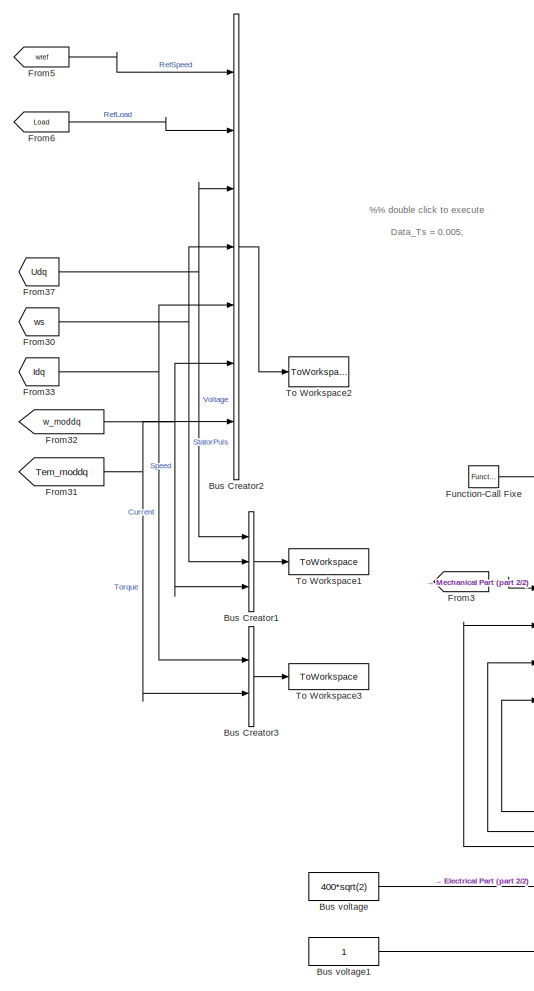
[diagram: root canvas - part 1/2, left side, full height]
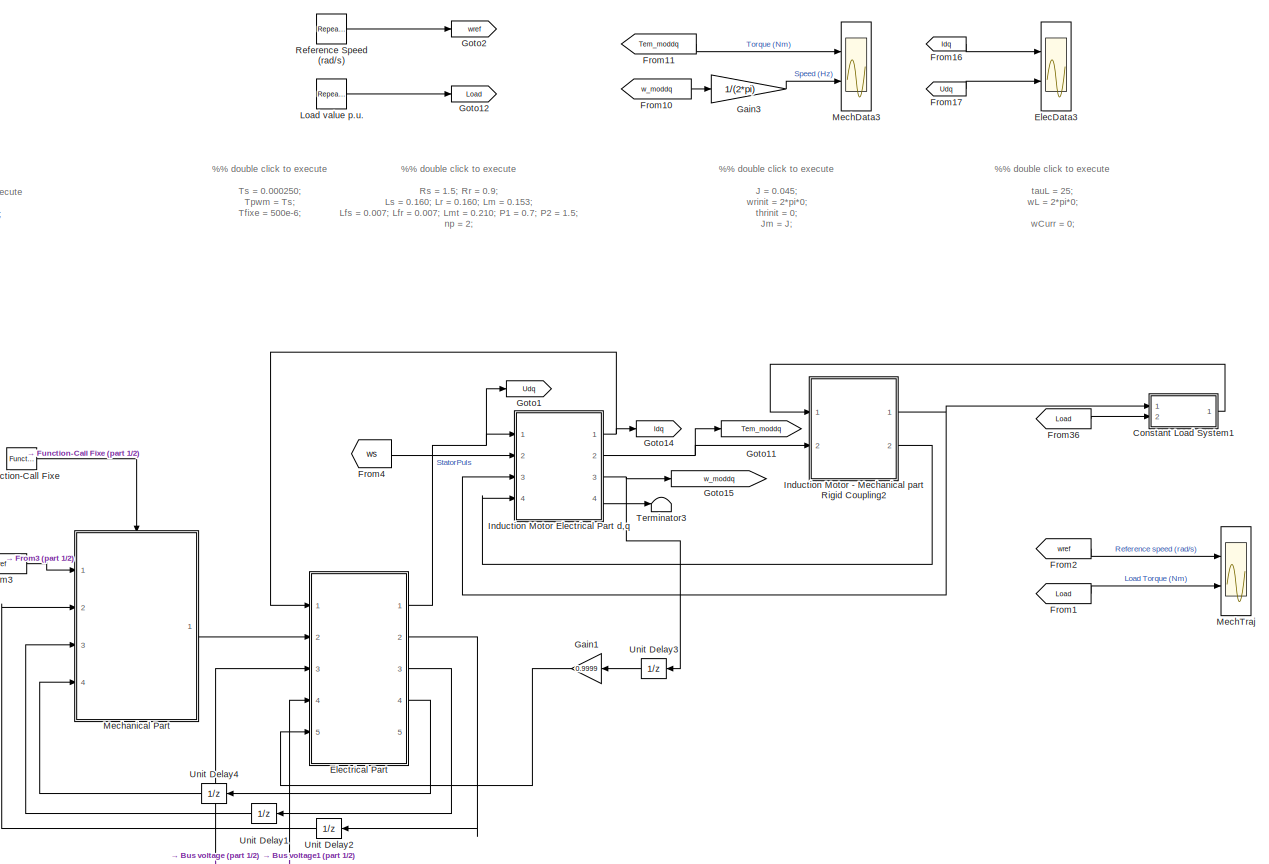
[diagram: root canvas - part 2/2, most of the canvas]
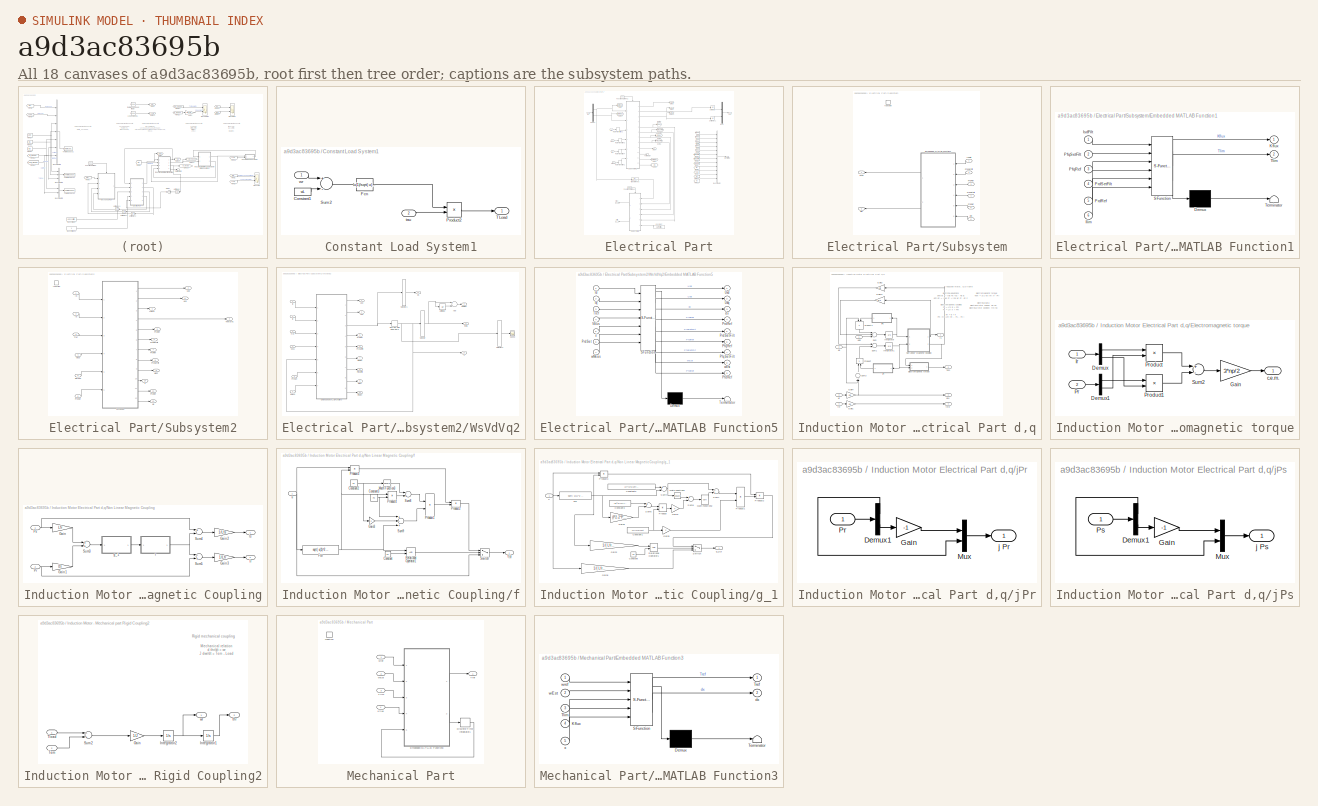
[diagram: thumbnail index - all 18 canvases of the model, root first then tree order]
MODEL slx_a9d3ac83695b
KIND model
CONFIG AbsTol = auto
CONFIG EnableMultiTasking = on
CONFIG FixedStep = auto
CONFIG MaxStep = 1e-4
CONFIG MinStep = auto
CONFIG RelTol = 1e-4
CONFIG SampleTimeConstraint = Unconstrained
CONFIG Solver = ode45
CONFIG SolverName = ode45
CONFIG StartTime = 0.0
CONFIG StopTime = 10
BLOCK [BusCreator] Bus Creator1
  DisplayOption = bar
  InheritFromInputs = on
  Inputs = 3
  Ports = [3, 1]
BLOCK [BusCreator] Bus Creator2
  DisplayOption = bar
  InheritFromInputs = on
  Inputs = 7
  Ports = [7, 1]
BLOCK [BusCreator] Bus Creator3
  DisplayOption = bar
  InheritFromInputs = on
  Inputs = 2
  Ports = [2, 1]
BLOCK [Constant] Bus voltage
  Value = 400*sqrt(2)
BLOCK [Constant] Bus voltage1
BLOCK [SubSystem] Constant Load System1
  Ports = [2, 1]
  RequestExecContextInheritance = off
BLOCK [Constant] Constant Load System1/Constant1
  Value = wL
BLOCK [Fcn] Constant Load System1/Fcn
  Expr = u(1)/sqrt( u(1)^2 + (2*pi*0.1)^2)
BLOCK [Product] Constant Load System1/Product2
  InputSameDT = off
  OutDataTypeStr = Inherit: Inherit via internal rule
  Ports = [2, 1]
  SaturateOnIntegerOverflow = off
BLOCK [Sum] Constant Load System1/Sum2
  Inputs = +-
  Ports = [2, 1]
BLOCK [Outport] Constant Load System1/TLoad
  IconDisplay = Port number
  VectorParamsAs1DForOutWhenUnconnected = off
BLOCK [Inport] Constant Load System1/tau
  IconDisplay = Port number
  Port = 2
BLOCK [Inport] Constant Load System1/wr
  IconDisplay = Port number
BLOCK [Scope] ElecData3
  Commented = on
  Floating = off
  NumInputPorts = 2
  Ports = [2]
  ScopeSpecificationString = C++SS(StrPVP('Location','[905, 97, 1229, 770]'),StrPVP('Open','off'),StrPVP('TickLabels','on'),StrPVP('ZoomMode','xonly'),MxPVP('AxesTitles',54,'struct(''axes1'',''%<SignalLabel>'',''axes2'',''%<SignalLabel>'')'),MxPVP('ScopeGraphics',57,'struct(''FigureColor'',''[0.5 0.5 0.5]'',''AxesColor'',''[0 0 0]'',''AxesTickColor'',''[1 1 1]'',''LineColors'',''[1 1 0;1 0 1;0 1 1;1 0 0;0 1 0;0 0 1]'',''LineS...<+439ch>
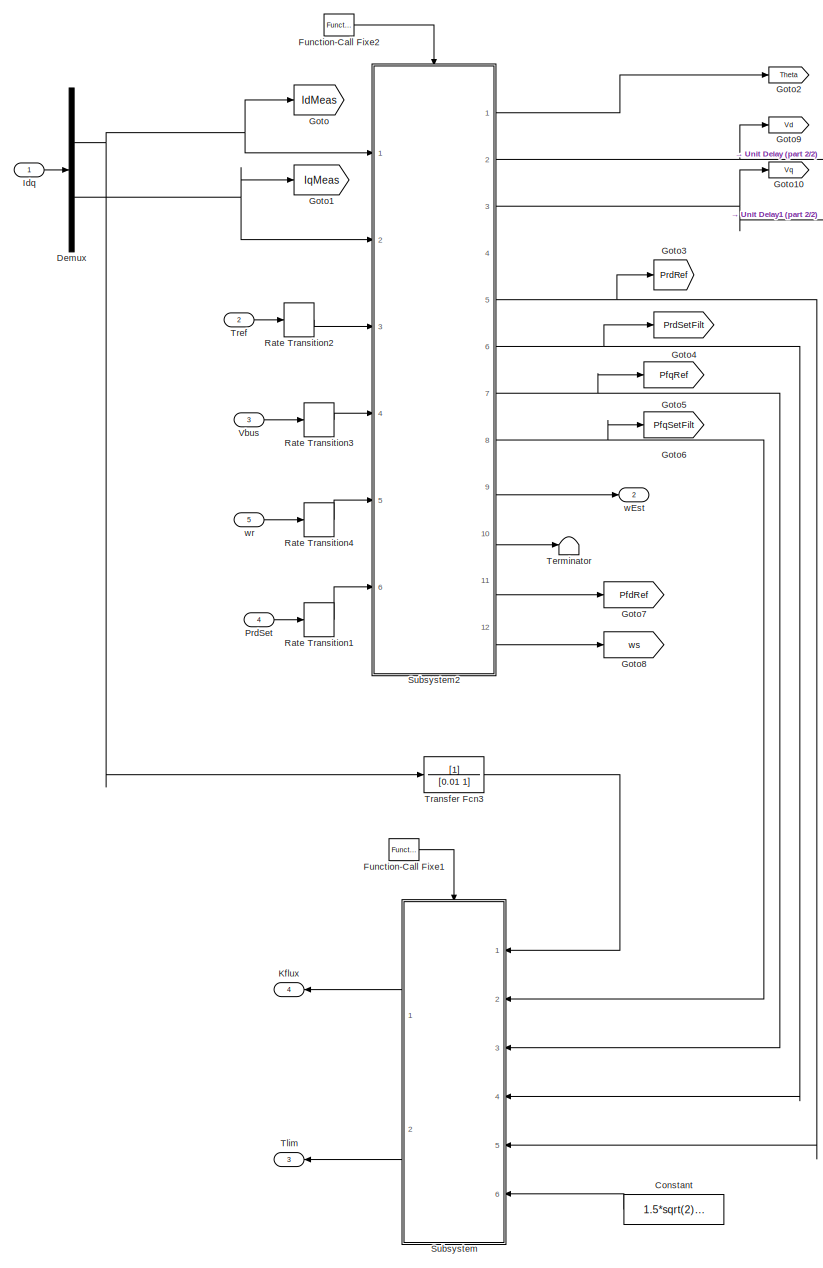
[diagram: Electrical Part - part 1/2, left side, full height]
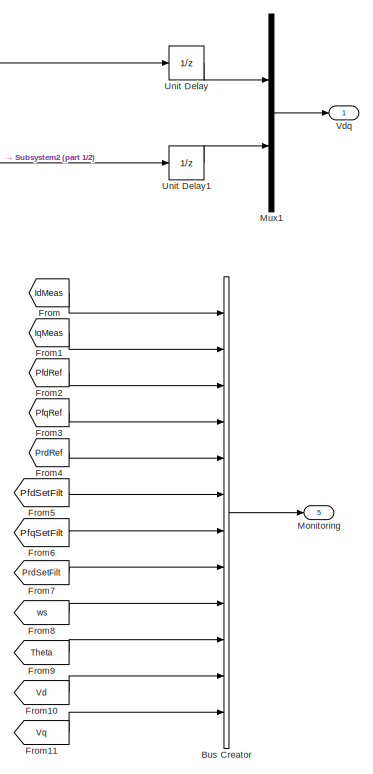
[diagram: Electrical Part - part 2/2, middle right region]
BLOCK [SubSystem] Electrical Part
  Ports = [5, 5]
  RequestExecContextInheritance = off
BLOCK [BusCreator] Electrical Part/Bus Creator
  DisplayOption = bar
  InheritFromInputs = on
  Inputs = 12
  Ports = [12, 1]
BLOCK [Constant] Electrical Part/Constant
  Value = 1.5*sqrt(2)*Inom
BLOCK [Demux] Electrical Part/Demux
  DisplayOption = bar
  Outputs = 2
  Ports = [1, 2]
BLOCK [From] Electrical Part/From
  GotoTag = IdMeas
BLOCK [From] Electrical Part/From1
  GotoTag = IqMeas
BLOCK [From] Electrical Part/From10
  GotoTag = Vd
BLOCK [From] Electrical Part/From11
  GotoTag = Vq
BLOCK [From] Electrical Part/From2
  GotoTag = PfdRef
BLOCK [From] Electrical Part/From3
  GotoTag = PfqRef
BLOCK [From] Electrical Part/From4
  GotoTag = PrdRef
BLOCK [From] Electrical Part/From5
  GotoTag = PfdSetFilt
BLOCK [From] Electrical Part/From6
  GotoTag = PfqSetFilt
BLOCK [From] Electrical Part/From7
  GotoTag = PrdSetFilt
BLOCK [From] Electrical Part/From8
  GotoTag = ws
  TagVisibility = global
BLOCK [From] Electrical Part/From9
  GotoTag = Theta
BLOCK [Reference] Electrical Part/Function-Call Fixe1  REF=simulink/Ports &
Subsystems/Function-Call
Generator
  Ports = [0, 1]
  SourceBlock = simulink/Ports &\nSubsystems/Function-Call\nGenerator
  SourceProductBaseCode = SL
  SourceProductName = Simulink
  SourceType = Function-Call Generator
BLOCK [Reference] Electrical Part/Function-Call Fixe2  REF=simulink/Ports &
Subsystems/Function-Call
Generator
  Ports = [0, 1]
  SourceBlock = simulink/Ports &\nSubsystems/Function-Call\nGenerator
  SourceProductBaseCode = SL
  SourceProductName = Simulink
  SourceType = Function-Call Generator
BLOCK [Goto] Electrical Part/Goto
  GotoTag = IdMeas
BLOCK [Goto] Electrical Part/Goto1
  GotoTag = IqMeas
BLOCK [Goto] Electrical Part/Goto10
  GotoTag = Vq
BLOCK [Goto] Electrical Part/Goto2
  GotoTag = Theta
BLOCK [Goto] Electrical Part/Goto3
  GotoTag = PrdRef
BLOCK [Goto] Electrical Part/Goto4
  GotoTag = PrdSetFilt
BLOCK [Goto] Electrical Part/Goto5
  GotoTag = PfqRef
BLOCK [Goto] Electrical Part/Goto6
  GotoTag = PfqSetFilt
BLOCK [Goto] Electrical Part/Goto7
  GotoTag = PfdRef
BLOCK [Goto] Electrical Part/Goto8
  GotoTag = ws
  TagVisibility = global
BLOCK [Goto] Electrical Part/Goto9
  GotoTag = Vd
BLOCK [Inport] Electrical Part/Idq
  IconDisplay = Port number
BLOCK [Outport] Electrical Part/Kflux
  IconDisplay = Port number
  Port = 4
  VectorParamsAs1DForOutWhenUnconnected = off
BLOCK [Outport] Electrical Part/Monitoring
  IconDisplay = Port number
  Port = 5
  VectorParamsAs1DForOutWhenUnconnected = off
BLOCK [Mux] Electrical Part/Mux1
  DisplayOption = bar
  Inputs = 2
  Ports = [2, 1]
BLOCK [Inport] Electrical Part/PrdSet
  IconDisplay = Port number
  Port = 4
BLOCK [RateTransition] Electrical Part/Rate Transition1
BLOCK [RateTransition] Electrical Part/Rate Transition2
BLOCK [RateTransition] Electrical Part/Rate Transition3
BLOCK [RateTransition] Electrical Part/Rate Transition4
BLOCK [SubSystem] Electrical Part/Subsystem
  Ports = [6, 2, 0, 1]
  RequestExecContextInheritance = off
BLOCK [SubSystem] Electrical Part/Subsystem/Embedded MATLAB Function1
  ErrorFcn = Stateflow.Translate.translate
  PermitHierarchicalResolution = ExplicitOnly
  Ports = [6, 2]
  RequestExecContextInheritance = off
  SFBlockType = MATLAB Function
  TreatAsAtomicUnit = on
BLOCK [Demux] Electrical Part/Subsystem/Embedded MATLAB Function1/ Demux 
  Outputs = 1
  Ports = [1, 1]
BLOCK [S-Function] Electrical Part/Subsystem/Embedded MATLAB Function1/ SFunction 
  EnableBusSupport = on
  FunctionName = sf_sfun
  Parameters = Inom,Jm,Lm,Lr,Ls,Prdnom,Rr,Rs,np
  PortCounts = [6 3]
  Ports = [6, 3]
  SFcnIsStateOwnerBlock = off
  SFunctionDeploymentMode = off
  Tag = Stateflow S-Function 5
BLOCK [Terminator] Electrical Part/Subsystem/Embedded MATLAB Function1/ Terminator 
BLOCK [Inport] Electrical Part/Subsystem/Embedded MATLAB Function1/Ilim
  IconDisplay = Port number
  Port = 6
BLOCK [Inport] Electrical Part/Subsystem/Embedded MATLAB Function1/IsdFilt
  IconDisplay = Port number
BLOCK [Outport] Electrical Part/Subsystem/Embedded MATLAB Function1/Kflux
  IconDisplay = Port number
  VectorParamsAs1DForOutWhenUnconnected = off
BLOCK [Inport] Electrical Part/Subsystem/Embedded MATLAB Function1/PfqRef
  IconDisplay = Port number
  Port = 3
BLOCK [Inport] Electrical Part/Subsystem/Embedded MATLAB Function1/PfqSetFilt
  IconDisplay = Port number
  Port = 2
BLOCK [Inport] Electrical Part/Subsystem/Embedded MATLAB Function1/PrdRef
  IconDisplay = Port number
  Port = 5
BLOCK [Inport] Electrical Part/Subsystem/Embedded MATLAB Function1/PrdSetFilt
  IconDisplay = Port number
  Port = 4
BLOCK [Outport] Electrical Part/Subsystem/Embedded MATLAB Function1/Tlim
  IconDisplay = Port number
  Port = 2
  VectorParamsAs1DForOutWhenUnconnected = off
BLOCK [Inport] Electrical Part/Subsystem/Ilim
  IconDisplay = Port number
  Port = 6
BLOCK [Inport] Electrical Part/Subsystem/IsdFilt
  IconDisplay = Port number
BLOCK [Outport] Electrical Part/Subsystem/Kflux
  IconDisplay = Port number
  VectorParamsAs1DForOutWhenUnconnected = off
BLOCK [Inport] Electrical Part/Subsystem/PfqRef
  IconDisplay = Port number
  Port = 3
BLOCK [Inport] Electrical Part/Subsystem/PfqSetFilt
  IconDisplay = Port number
  Port = 2
BLOCK [Inport] Electrical Part/Subsystem/PrdRef
  IconDisplay = Port number
  Port = 5
BLOCK [Inport] Electrical Part/Subsystem/PrdSetFilt
  IconDisplay = Port number
  Port = 4
BLOCK [Outport] Electrical Part/Subsystem/Tlim
  IconDisplay = Port number
  Port = 2
  VectorParamsAs1DForOutWhenUnconnected = off
BLOCK [TriggerPort] Electrical Part/Subsystem/function
  Ports = []
  StatesWhenEnabling = held
  TriggerType = function-call
  VariantControl = (inherit)
BLOCK [SubSystem] Electrical Part/Subsystem2
  Ports = [6, 12, 0, 1]
  RequestExecContextInheritance = off
BLOCK [Inport] Electrical Part/Subsystem2/Id
  IconDisplay = Port number
BLOCK [Inport] Electrical Part/Subsystem2/Iq
  IconDisplay = Port number
  Port = 2
BLOCK [Outport] Electrical Part/Subsystem2/PfdRef
  IconDisplay = Port number
  Port = 11
  VectorParamsAs1DForOutWhenUnconnected = off
BLOCK [Outport] Electrical Part/Subsystem2/PfqRef
  IconDisplay = Port number
  Port = 7
  VectorParamsAs1DForOutWhenUnconnected = off
BLOCK [Outport] Electrical Part/Subsystem2/PfqSetFilt
  IconDisplay = Port number
  Port = 8
  VectorParamsAs1DForOutWhenUnconnected = off
BLOCK [Outport] Electrical Part/Subsystem2/PrdRef
  IconDisplay = Port number
  Port = 5
  VectorParamsAs1DForOutWhenUnconnected = off
BLOCK [Inport] Electrical Part/Subsystem2/PrdSet
  IconDisplay = Port number
  Port = 6
BLOCK [Outport] Electrical Part/Subsystem2/PrdSetFilt
  IconDisplay = Port number
  Port = 6
  VectorParamsAs1DForOutWhenUnconnected = off
BLOCK [Outport] Electrical Part/Subsystem2/ThetaInc
  IconDisplay = Port number
  Port = 4
  VectorParamsAs1DForOutWhenUnconnected = off
BLOCK [Inport] Electrical Part/Subsystem2/Tref
  IconDisplay = Port number
  Port = 3
BLOCK [Outport] Electrical Part/Subsystem2/Usd
  IconDisplay = Port number
  Port = 2
  VectorParamsAs1DForOutWhenUnconnected = off
BLOCK [Outport] Electrical Part/Subsystem2/Usq
  IconDisplay = Port number
  Port = 3
  VectorParamsAs1DForOutWhenUnconnected = off
BLOCK [Inport] Electrical Part/Subsystem2/Vbus
  IconDisplay = Port number
  Port = 4
BLOCK [SubSystem] Electrical Part/Subsystem2/WsVdVq2
  Ports = [6, 12]
  RequestExecContextInheritance = off
BLOCK [Sum] Electrical Part/Subsystem2/WsVdVq2/Add
  InputSameDT = off
  Inputs = +-
  OutDataTypeStr = Inherit: Inherit via internal rule
  Ports = [2, 1]
  SaturateOnIntegerOverflow = off
BLOCK [DiscreteIntegrator] Electrical Part/Subsystem2/WsVdVq2/Discrete-Time Integrator8
  ICPrevOutput = DiscIntNeverNeededParam
  ICPrevScaledInput = DiscIntNeverNeededParam
  InitialCondition = [1/(Lm^2/Lr),0,1,zeros(1,9)]
  Ports = [1, 1]
  SampleTime = -1
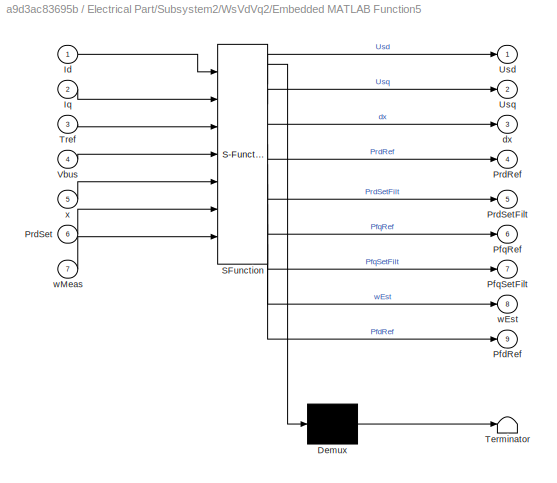
BLOCK [SubSystem] Electrical Part/Subsystem2/WsVdVq2/Embedded MATLAB Function5
  ErrorFcn = Stateflow.Translate.translate
  PermitHierarchicalResolution = ExplicitOnly
  Ports = [7, 9]
  RequestExecContextInheritance = off
  SFBlockType = MATLAB Function
  TreatAsAtomicUnit = on
BLOCK [Demux] Electrical Part/Subsystem2/WsVdVq2/Embedded MATLAB Function5/ Demux 
  Outputs = 1
  Ports = [1, 1]
BLOCK [S-Function] Electrical Part/Subsystem2/WsVdVq2/Embedded MATLAB Function5/ SFunction 
  EnableBusSupport = on
  FunctionName = sf_sfun
  Parameters = Jm,Lm,Lr,Ls,Prdnom,Rr,Rs,SLP_Coeff,Tpwm,Vnom,np,wCurr,wCurr_PI,wSpeedEst,xiCurr_PI
  PortCounts = [7 10]
  Ports = [7, 10]
  SFcnIsStateOwnerBlock = off
  SFunctionDeploymentMode = off
  Tag = Stateflow S-Function 6
BLOCK [Terminator] Electrical Part/Subsystem2/WsVdVq2/Embedded MATLAB Function5/ Terminator 
BLOCK [Inport] Electrical Part/Subsystem2/WsVdVq2/Embedded MATLAB Function5/Id
  IconDisplay = Port number
BLOCK [Inport] Electrical Part/Subsystem2/WsVdVq2/Embedded MATLAB Function5/Iq
  IconDisplay = Port number
  Port = 2
BLOCK [Outport] Electrical Part/Subsystem2/WsVdVq2/Embedded MATLAB Function5/PfdRef
  IconDisplay = Port number
  Port = 9
  VectorParamsAs1DForOutWhenUnconnected = off
BLOCK [Outport] Electrical Part/Subsystem2/WsVdVq2/Embedded MATLAB Function5/PfqRef
  IconDisplay = Port number
  Port = 6
  VectorParamsAs1DForOutWhenUnconnected = off
BLOCK [Outport] Electrical Part/Subsystem2/WsVdVq2/Embedded MATLAB Function5/PfqSetFilt
  IconDisplay = Port number
  Port = 7
  VectorParamsAs1DForOutWhenUnconnected = off
BLOCK [Outport] Electrical Part/Subsystem2/WsVdVq2/Embedded MATLAB Function5/PrdRef
  IconDisplay = Port number
  Port = 4
  VectorParamsAs1DForOutWhenUnconnected = off
BLOCK [Inport] Electrical Part/Subsystem2/WsVdVq2/Embedded MATLAB Function5/PrdSet
  IconDisplay = Port number
  Port = 6
BLOCK [Outport] Electrical Part/Subsystem2/WsVdVq2/Embedded MATLAB Function5/PrdSetFilt
  IconDisplay = Port number
  Port = 5
  VectorParamsAs1DForOutWhenUnconnected = off
BLOCK [Inport] Electrical Part/Subsystem2/WsVdVq2/Embedded MATLAB Function5/Tref
  IconDisplay = Port number
  Port = 3
BLOCK [Outport] Electrical Part/Subsystem2/WsVdVq2/Embedded MATLAB Function5/Usd
  IconDisplay = Port number
  VectorParamsAs1DForOutWhenUnconnected = off
BLOCK [Outport] Electrical Part/Subsystem2/WsVdVq2/Embedded MATLAB Function5/Usq
  IconDisplay = Port number
  Port = 2
  VectorParamsAs1DForOutWhenUnconnected = off
BLOCK [Inport] Electrical Part/Subsystem2/WsVdVq2/Embedded MATLAB Function5/Vbus
  IconDisplay = Port number
  Port = 4
BLOCK [Outport] Electrical Part/Subsystem2/WsVdVq2/Embedded MATLAB Function5/dx
  IconDisplay = Port number
  Port = 3
  VectorParamsAs1DForOutWhenUnconnected = off
BLOCK [Outport] Electrical Part/Subsystem2/WsVdVq2/Embedded MATLAB Function5/wEst
  IconDisplay = Port number
  Port = 8
  VectorParamsAs1DForOutWhenUnconnected = off
BLOCK [Inport] Electrical Part/Subsystem2/WsVdVq2/Embedded MATLAB Function5/wMeas
  IconDisplay = Port number
  Port = 7
BLOCK [Inport] Electrical Part/Subsystem2/WsVdVq2/Embedded MATLAB Function5/x
  IconDisplay = Port number
  Port = 5
BLOCK [Inport] Electrical Part/Subsystem2/WsVdVq2/Id
  IconDisplay = Port number
BLOCK [Inport] Electrical Part/Subsystem2/WsVdVq2/Iq
  IconDisplay = Port number
  Port = 2
BLOCK [Outport] Electrical Part/Subsystem2/WsVdVq2/PfdRef
  IconDisplay = Port number
  Port = 11
  VectorParamsAs1DForOutWhenUnconnected = off
BLOCK [Outport] Electrical Part/Subsystem2/WsVdVq2/PfqRef
  IconDisplay = Port number
  Port = 7
  VectorParamsAs1DForOutWhenUnconnected = off
BLOCK [Outport] Electrical Part/Subsystem2/WsVdVq2/PfqSetFilt
  IconDisplay = Port number
  Port = 8
  VectorParamsAs1DForOutWhenUnconnected = off
BLOCK [Outport] Electrical Part/Subsystem2/WsVdVq2/PrdRef
  IconDisplay = Port number
  Port = 5
  VectorParamsAs1DForOutWhenUnconnected = off
BLOCK [Inport] Electrical Part/Subsystem2/WsVdVq2/PrdSet
  IconDisplay = Port number
  Port = 6
BLOCK [Outport] Electrical Part/Subsystem2/WsVdVq2/PrdSetFilt
  IconDisplay = Port number
  Port = 6
  VectorParamsAs1DForOutWhenUnconnected = off
BLOCK [Selector] Electrical Part/Subsystem2/WsVdVq2/Selector
  IndexOptions = Index vector (dialog)
  Indices = 5
  InputPortWidth = 12
  OutputSizes = 1
  Ports = [1, 1]
BLOCK [Selector] Electrical Part/Subsystem2/WsVdVq2/Selector1
  IndexOptions = Index vector (dialog)
  Indices = 5
  InputPortWidth = 12
  OutputSizes = 1
  Ports = [1, 1]
BLOCK [Selector] Electrical Part/Subsystem2/WsVdVq2/Selector2
  IndexOptions = Index vector (dialog)
  Indices = [11 12]
  InputPortWidth = 12
  OutputSizes = 1
  Ports = [1, 1]
BLOCK [Scope] Electrical Part/Subsystem2/WsVdVq2/Speed
  Floating = off
  NumInputPorts = 1
  Ports = [1]
  ScopeSpecificationString = C++SS(StrPVP('Location','[29, 639, 688, 990]'),StrPVP('Open','off'),MxPVP('AxesTitles',54,'struct(''axes1'',''%<SignalLabel>'')'),MxPVP('ScopeGraphics',57,'struct(''FigureColor'',''[0.5 0.5 0.5]'',''AxesColor'',''[0 0 0]'',''AxesTickColor'',''[1 1 1]'',''LineColors'',''[1 1 0;1 0 1;0 1 1;1 0 0;0 1 0;0 0 1]'',''LineStyles'',''-|-|-|-|-|-'',''LineWidths'',''[0.5 0.5 0.5 0.5 0.5 0.5]'',''MarkerStyles...<+333ch>
BLOCK [Inport] Electrical Part/Subsystem2/WsVdVq2/Tref
  IconDisplay = Port number
  Port = 3
BLOCK [UnitDelay] Electrical Part/Subsystem2/WsVdVq2/Unit Delay
  HasFrameUpgradeWarning = on
  SampleTime = -1
BLOCK [Outport] Electrical Part/Subsystem2/WsVdVq2/Usd
  IconDisplay = Port number
  VectorParamsAs1DForOutWhenUnconnected = off
BLOCK [Outport] Electrical Part/Subsystem2/WsVdVq2/Usq
  IconDisplay = Port number
  Port = 2
  VectorParamsAs1DForOutWhenUnconnected = off
BLOCK [Inport] Electrical Part/Subsystem2/WsVdVq2/Vbus
  IconDisplay = Port number
  Port = 4
BLOCK [Outport] Electrical Part/Subsystem2/WsVdVq2/theta
  IconDisplay = Port number
  InitialOutput = [0]
  Port = 3
  VectorParamsAs1DForOutWhenUnconnected = off
BLOCK [Outport] Electrical Part/Subsystem2/WsVdVq2/thetaInc
  IconDisplay = Port number
  InitialOutput = [0]
  Port = 4
  VectorParamsAs1DForOutWhenUnconnected = off
BLOCK [Outport] Electrical Part/Subsystem2/WsVdVq2/wEst
  IconDisplay = Port number
  Port = 9
  VectorParamsAs1DForOutWhenUnconnected = off
BLOCK [Inport] Electrical Part/Subsystem2/WsVdVq2/wMeas
  IconDisplay = Port number
  Port = 5
BLOCK [Outport] Electrical Part/Subsystem2/WsVdVq2/ws
  IconDisplay = Port number
  InitialOutput = [0]
  Port = 12
  VectorParamsAs1DForOutWhenUnconnected = off
BLOCK [Outport] Electrical Part/Subsystem2/WsVdVq2/x
  IconDisplay = Port number
  InitialOutput = [0]
  Port = 10
  VectorParamsAs1DForOutWhenUnconnected = off
BLOCK [TriggerPort] Electrical Part/Subsystem2/function
  Ports = []
  StatesWhenEnabling = held
  TriggerType = function-call
  VariantControl = (inherit)
BLOCK [Outport] Electrical Part/Subsystem2/theta
  IconDisplay = Port number
  VectorParamsAs1DForOutWhenUnconnected = off
BLOCK [Outport] Electrical Part/Subsystem2/wEst
  IconDisplay = Port number
  Port = 9
  VectorParamsAs1DForOutWhenUnconnected = off
BLOCK [Inport] Electrical Part/Subsystem2/wMeas
  IconDisplay = Port number
  Port = 5
BLOCK [Outport] Electrical Part/Subsystem2/ws
  IconDisplay = Port number
  Port = 12
  VectorParamsAs1DForOutWhenUnconnected = off
BLOCK [Outport] Electrical Part/Subsystem2/x
  IconDisplay = Port number
  Port = 10
  VectorParamsAs1DForOutWhenUnconnected = off
BLOCK [Terminator] Electrical Part/Terminator
BLOCK [Outport] Electrical Part/Tlim
  IconDisplay = Port number
  Port = 3
  VectorParamsAs1DForOutWhenUnconnected = off
BLOCK [TransferFcn] Electrical Part/Transfer Fcn3
  Denominator = [0.01 1]
BLOCK [Inport] Electrical Part/Tref
  IconDisplay = Port number
  Port = 2
BLOCK [UnitDelay] Electrical Part/Unit Delay
  HasFrameUpgradeWarning = on
  SampleTime = -1
BLOCK [UnitDelay] Electrical Part/Unit Delay1
  HasFrameUpgradeWarning = on
  SampleTime = -1
BLOCK [Inport] Electrical Part/Vbus
  IconDisplay = Port number
  Port = 3
BLOCK [Outport] Electrical Part/Vdq
  IconDisplay = Port number
  VectorParamsAs1DForOutWhenUnconnected = off
BLOCK [Outport] Electrical Part/wEst
  IconDisplay = Port number
  Port = 2
  VectorParamsAs1DForOutWhenUnconnected = off
BLOCK [Inport] Electrical Part/wr
  IconDisplay = Port number
  Port = 5
BLOCK [From] From1
  GotoTag = Load
  TagVisibility = global
BLOCK [From] From10
  Commented = on
  GotoTag = w_moddq
BLOCK [From] From11
  Commented = on
  GotoTag = Tem_moddq
BLOCK [From] From16
  Commented = on
  GotoTag = Idq
BLOCK [From] From17
  Commented = on
  GotoTag = Udq
BLOCK [From] From2
  GotoTag = wref
  TagVisibility = global
BLOCK [From] From3
  GotoTag = wref
  TagVisibility = global
BLOCK [From] From30
  GotoTag = ws
  TagVisibility = global
BLOCK [From] From31
  GotoTag = Tem_moddq
BLOCK [From] From32
  GotoTag = w_moddq
BLOCK [From] From33
  GotoTag = Idq
BLOCK [From] From36
  GotoTag = Load
  TagVisibility = global
BLOCK [From] From37
  GotoTag = Udq
BLOCK [From] From4
  GotoTag = ws
  TagVisibility = global
BLOCK [From] From5
  GotoTag = wref
  TagVisibility = global
BLOCK [From] From6
  GotoTag = Load
  TagVisibility = global
BLOCK [Reference] Function-Call Fixe  REF=simulink/Ports &
Subsystems/Function-Call
Generator
  Ports = [0, 1]
  SourceBlock = simulink/Ports &\nSubsystems/Function-Call\nGenerator
  SourceProductBaseCode = SL
  SourceProductName = Simulink
  SourceType = Function-Call Generator
BLOCK [Gain] Gain1
  Gain = 0.9999
  OutDataTypeStr = Inherit: Inherit via internal rule
  ParamDataTypeStr = Inherit: Inherit via internal rule
  SaturateOnIntegerOverflow = off
BLOCK [Gain] Gain3
  Commented = on
  Gain = 1/(2*pi)
BLOCK [Goto] Goto1
  GotoTag = Udq
BLOCK [Goto] Goto11
  GotoTag = Tem_moddq
BLOCK [Goto] Goto12
  GotoTag = Load
  TagVisibility = global
BLOCK [Goto] Goto14
  GotoTag = Idq
BLOCK [Goto] Goto15
  GotoTag = w_moddq
BLOCK [Goto] Goto2
  GotoTag = wref
  TagVisibility = global
BLOCK [SubSystem] Induction Motor - Mechanical part Rigid Coupling2
  Ports = [2, 2]
  RequestExecContextInheritance = off
BLOCK [Gain] Induction Motor - Mechanical part Rigid Coupling2/Gain
  Gain = 1/J
BLOCK [Integrator] Induction Motor - Mechanical part Rigid Coupling2/Integrator1
  InitialCondition = thrinit
  Ports = [1, 1]
BLOCK [Integrator] Induction Motor - Mechanical part Rigid Coupling2/Integrator2
  InitialCondition = wrinit
  Ports = [1, 1]
BLOCK [Sum] Induction Motor - Mechanical part Rigid Coupling2/Sum2
  Inputs = -+
  Ports = [2, 1]
BLOCK [Inport] Induction Motor - Mechanical part Rigid Coupling2/Tem
  IconDisplay = Port number
  Port = 2
BLOCK [Inport] Induction Motor - Mechanical part Rigid Coupling2/Tload
  IconDisplay = Port number
BLOCK [Outport] Induction Motor - Mechanical part Rigid Coupling2/thr
  IconDisplay = Port number
  Port = 2
  VectorParamsAs1DForOutWhenUnconnected = off
BLOCK [Outport] Induction Motor - Mechanical part Rigid Coupling2/wr
  IconDisplay = Port number
  VectorParamsAs1DForOutWhenUnconnected = off
BLOCK [SubSystem] Induction Motor Electrical Part d,q
  Ports = [4, 4]
  RequestExecContextInheritance = off
BLOCK [SubSystem] Induction Motor Electrical Part d,q/Electromagnetic torque
  Ports = [2, 1]
  RequestExecContextInheritance = off
BLOCK [Demux] Induction Motor Electrical Part d,q/Electromagnetic torque/Demux
  Outputs = 2
  Ports = [1, 2]
BLOCK [Demux] Induction Motor Electrical Part d,q/Electromagnetic torque/Demux1
  Outputs = 2
  Ports = [1, 2]
BLOCK [Gain] Induction Motor Electrical Part d,q/Electromagnetic torque/Gain
  Gain = 3*np/2
BLOCK [Inport] Induction Motor Electrical Part d,q/Electromagnetic torque/Ir
  IconDisplay = Port number
BLOCK [Inport] Induction Motor Electrical Part d,q/Electromagnetic torque/Pr
  IconDisplay = Port number
  Port = 2
BLOCK [Product] Induction Motor Electrical Part d,q/Electromagnetic torque/Product
  Ports = [2, 1]
BLOCK [Product] Induction Motor Electrical Part d,q/Electromagnetic torque/Product1
  Ports = [2, 1]
BLOCK [Sum] Induction Motor Electrical Part d,q/Electromagnetic torque/Sum2
  Inputs = +-
  Ports = [2, 1]
BLOCK [Outport] Induction Motor Electrical Part d,q/Electromagnetic torque/c.e.m.
  IconDisplay = Port number
  VectorParamsAs1DForOutWhenUnconnected = off
BLOCK [Gain] Induction Motor Electrical Part d,q/Gain1
  Gain = np
BLOCK [Gain] Induction Motor Electrical Part d,q/Gain14
  Gain = Rs
BLOCK [Gain] Induction Motor Electrical Part d,q/Gain2
  Gain = Rr
BLOCK [Gain] Induction Motor Electrical Part d,q/Gain4
  Gain = np
BLOCK [Integrator] Induction Motor Electrical Part d,q/Integrator
  InitialCondition = Psinit
  Ports = [1, 1]
BLOCK [Integrator] Induction Motor Electrical Part d,q/Integrator1
  InitialCondition = Prinit
  Ports = [1, 1]
BLOCK [Outport] Induction Motor Electrical Part d,q/Is
  IconDisplay = Port number
  VectorParamsAs1DForOutWhenUnconnected = off
BLOCK [SubSystem] Induction Motor Electrical Part d,q/Non Linear Magnetic Coupling
  Ports = [2, 2]
  RequestExecContextInheritance = off
BLOCK [Gain] Induction Motor Electrical Part d,q/Non Linear Magnetic Coupling/Gain
  Gain = Lfr
BLOCK [Gain] Induction Motor Electrical Part d,q/Non Linear Magnetic Coupling/Gain1
  Gain = Lfs
BLOCK [Gain] Induction Motor Electrical Part d,q/Non Linear Magnetic Coupling/Gain2
  Gain = 1/Lfs
BLOCK [Gain] Induction Motor Electrical Part d,q/Non Linear Magnetic Coupling/Gain3
  Gain = 1/Lfr
BLOCK [Outport] Induction Motor Electrical Part d,q/Non Linear Magnetic Coupling/Ir
  IconDisplay = Port number
  Port = 2
  VectorParamsAs1DForOutWhenUnconnected = off
BLOCK [Outport] Induction Motor Electrical Part d,q/Non Linear Magnetic Coupling/Is
  IconDisplay = Port number
  VectorParamsAs1DForOutWhenUnconnected = off
BLOCK [Inport] Induction Motor Electrical Part d,q/Non Linear Magnetic Coupling/Pr
  IconDisplay = Port number
  Port = 2
BLOCK [Inport] Induction Motor Electrical Part d,q/Non Linear Magnetic Coupling/Ps
  IconDisplay = Port number
BLOCK [Sum] Induction Motor Electrical Part d,q/Non Linear Magnetic Coupling/Sum3
  Ports = [2, 1]
BLOCK [Sum] Induction Motor Electrical Part d,q/Non Linear Magnetic Coupling/Sum4
  Inputs = +-
  Ports = [2, 1]
BLOCK [Sum] Induction Motor Electrical Part d,q/Non Linear Magnetic Coupling/Sum5
  Inputs = -+
  Ports = [2, 1]
BLOCK [SubSystem] Induction Motor Electrical Part d,q/Non Linear Magnetic Coupling/f
  Ports = [1, 1]
  RequestExecContextInheritance = off
BLOCK [Constant] Induction Motor Electrical Part d,q/Non Linear Magnetic Coupling/f/Constant
  Value = P1
BLOCK [Constant] Induction Motor Electrical Part d,q/Non Linear Magnetic Coupling/f/Constant2
  Value = P1
BLOCK [Constant] Induction Motor Electrical Part d,q/Non Linear Magnetic Coupling/f/Constant3
  Value = P2
BLOCK [Fcn] Induction Motor Electrical Part d,q/Non Linear Magnetic Coupling/f/Fcn
  Expr = sqrt( u(1)^2 + u(2)^2 )
BLOCK [Gain] Induction Motor Electrical Part d,q/Non Linear Magnetic Coupling/f/Gain3
  Gain = 2
BLOCK [Math] Induction Motor Electrical Part d,q/Non Linear Magnetic Coupling/f/Math Function3
  Operator = square
  Ports = [1, 1]
BLOCK [Product] Induction Motor Electrical Part d,q/Non Linear Magnetic Coupling/f/Product1
  Inputs = */
  Ports = [2, 1]
BLOCK [Product] Induction Motor Electrical Part d,q/Non Linear Magnetic Coupling/f/Product2
  Ports = [2, 1]
BLOCK [Product] Induction Motor Electrical Part d,q/Non Linear Magnetic Coupling/f/Product3
  Inputs = */
  Ports = [2, 1]
BLOCK [Product] Induction Motor Electrical Part d,q/Non Linear Magnetic Coupling/f/Product4
  Ports = [2, 1]
BLOCK [RelationalOperator] Induction Motor Electrical Part d,q/Non Linear Magnetic Coupling/f/Relational Operator1
  Ports = [2, 1]
BLOCK [Sum] Induction Motor Electrical Part d,q/Non Linear Magnetic Coupling/f/Sum8
  Inputs = -+
  Ports = [2, 1]
BLOCK [Sum] Induction Motor Electrical Part d,q/Non Linear Magnetic Coupling/f/Sum9
  Inputs = +-+
  Ports = [3, 1]
BLOCK [Switch] Induction Motor Electrical Part d,q/Non Linear Magnetic Coupling/f/Switch
  Threshold = 0.5
BLOCK [Outport] Induction Motor Electrical Part d,q/Non Linear Magnetic Coupling/f/f(u)
  IconDisplay = Port number
  InitialOutput = 0
  VectorParamsAs1DForOutWhenUnconnected = off
BLOCK [Inport] Induction Motor Electrical Part d,q/Non Linear Magnetic Coupling/f/u
  IconDisplay = Port number
BLOCK [SubSystem] Induction Motor Electrical Part d,q/Non Linear Magnetic Coupling/g_1
  Ports = [1, 1]
  RequestExecContextInheritance = off
BLOCK [Constant] Induction Motor Electrical Part d,q/Non Linear Magnetic Coupling/g_1/Constant
  Value = P1
BLOCK [Constant] Induction Motor Electrical Part d,q/Non Linear Magnetic Coupling/g_1/Constant1
  Value = Lfr*Lfs/Lmt
BLOCK [Constant] Induction Motor Electrical Part d,q/Non Linear Magnetic Coupling/g_1/Constant2
  Value = Lfr*Lfs/Lmt*(P2-2*P1) + P2*(Lfr+Lfs)
BLOCK [Constant] Induction Motor Electrical Part d,q/Non Linear Magnetic Coupling/g_1/Constant3
  Value = -P1^2*(Lfr+Lfs)
BLOCK [Fcn] Induction Motor Electrical Part d,q/Non Linear Magnetic Coupling/g_1/Fcn
  Expr = sqrt( u(1)^2 + u(2)^2 )
BLOCK [Gain] Induction Motor Electrical Part d,q/Non Linear Magnetic Coupling/g_1/Gain2
  Gain = 1/( Lfr*Lfs/Lmt + Lfr + Lfs )
BLOCK [Gain] Induction Motor Electrical Part d,q/Non Linear Magnetic Coupling/g_1/Gain3
  Gain = (P2-2*P1)
BLOCK [Gain] Induction Motor Electrical Part d,q/Non Linear Magnetic Coupling/g_1/Gain4
  Gain = 4
BLOCK [Gain] Induction Motor Electrical Part d,q/Non Linear Magnetic Coupling/g_1/Gain5
  Gain = 2
BLOCK [Gain] Induction Motor Electrical Part d,q/Non Linear Magnetic Coupling/g_1/Gain6
  Gain = 1/( Lfr*Lfs/Lmt + Lfr + Lfs )
BLOCK [Math] Induction Motor Electrical Part d,q/Non Linear Magnetic Coupling/g_1/Math Function1
  Operator = square
  Ports = [1, 1]
BLOCK [Math] Induction Motor Electrical Part d,q/Non Linear Magnetic Coupling/g_1/Math Function2
  Operator = sqrt
  Ports = [1, 1]
BLOCK [Product] Induction Motor Electrical Part d,q/Non Linear Magnetic Coupling/g_1/Product
  Ports = [2, 1]
BLOCK [Product] Induction Motor Electrical Part d,q/Non Linear Magnetic Coupling/g_1/Product1
  Inputs = */
  Ports = [2, 1]
BLOCK [Product] Induction Motor Electrical Part d,q/Non Linear Magnetic Coupling/g_1/Product2
  Ports = [2, 1]
BLOCK [Product] Induction Motor Electrical Part d,q/Non Linear Magnetic Coupling/g_1/Product3
  Inputs = */
  Ports = [2, 1]
BLOCK [RelationalOperator] Induction Motor Electrical Part d,q/Non Linear Magnetic Coupling/g_1/Relational Operator1
  Ports = [2, 1]
BLOCK [Sum] Induction Motor Electrical Part d,q/Non Linear Magnetic Coupling/g_1/Sum4
  Inputs = +-
  Ports = [2, 1]
BLOCK [Sum] Induction Motor Electrical Part d,q/Non Linear Magnetic Coupling/g_1/Sum5
  Inputs = +-
  Ports = [2, 1]
BLOCK [Sum] Induction Motor Electrical Part d,q/Non Linear Magnetic Coupling/g_1/Sum6
  Inputs = +-
  Ports = [2, 1]
BLOCK [Sum] Induction Motor Electrical Part d,q/Non Linear Magnetic Coupling/g_1/Sum7
  Inputs = -+
  Ports = [2, 1]
BLOCK [Switch] Induction Motor Electrical Part d,q/Non Linear Magnetic Coupling/g_1/Switch
  Threshold = 0.5
BLOCK [Outport] Induction Motor Electrical Part d,q/Non Linear Magnetic Coupling/g_1/g_1(u)
  IconDisplay = Port number
  InitialOutput = 0
  VectorParamsAs1DForOutWhenUnconnected = off
BLOCK [Inport] Induction Motor Electrical Part d,q/Non Linear Magnetic Coupling/g_1/u
  IconDisplay = Port number
BLOCK [Product] Induction Motor Electrical Part d,q/Product
  Ports = [2, 1]
BLOCK [Product] Induction Motor Electrical Part d,q/Product1
  Ports = [2, 1]
BLOCK [Sum] Induction Motor Electrical Part d,q/Sum
  Inputs = --+
  Ports = [3, 1]
BLOCK [Sum] Induction Motor Electrical Part d,q/Sum1
  Inputs = -+
  Ports = [2, 1]
BLOCK [Sum] Induction Motor Electrical Part d,q/Sum3
  Inputs = -+
  Ports = [2, 1]
BLOCK [Outport] Induction Motor Electrical Part d,q/Tem
  IconDisplay = Port number
  Port = 2
  VectorParamsAs1DForOutWhenUnconnected = off
BLOCK [Inport] Induction Motor Electrical Part d,q/Udq
  IconDisplay = Port number
BLOCK [SubSystem] Induction Motor Electrical Part d,q/jPr
  Ports = [1, 1]
  RequestExecContextInheritance = off
BLOCK [Demux] Induction Motor Electrical Part d,q/jPr/Demux1
  Outputs = 2
  Ports = [1, 2]
BLOCK [Gain] Induction Motor Electrical Part d,q/jPr/Gain
  Gain = -1
BLOCK [Mux] Induction Motor Electrical Part d,q/jPr/Mux
  Inputs = 2
  Ports = [2, 1]
BLOCK [Inport] Induction Motor Electrical Part d,q/jPr/Pr
  IconDisplay = Port number
BLOCK [Outport] Induction Motor Electrical Part d,q/jPr/j Pr
  IconDisplay = Port number
  VectorParamsAs1DForOutWhenUnconnected = off
BLOCK [SubSystem] Induction Motor Electrical Part d,q/jPs
  Ports = [1, 1]
  RequestExecContextInheritance = off
BLOCK [Demux] Induction Motor Electrical Part d,q/jPs/Demux1
  Outputs = 2
  Ports = [1, 2]
BLOCK [Gain] Induction Motor Electrical Part d,q/jPs/Gain
  Gain = -1
BLOCK [Mux] Induction Motor Electrical Part d,q/jPs/Mux
  Inputs = 2
  Ports = [2, 1]
BLOCK [Inport] Induction Motor Electrical Part d,q/jPs/Ps
  IconDisplay = Port number
BLOCK [Outport] Induction Motor Electrical Part d,q/jPs/j Ps
  IconDisplay = Port number
  VectorParamsAs1DForOutWhenUnconnected = off
BLOCK [Inport] Induction Motor Electrical Part d,q/thr
  IconDisplay = Port number
  Port = 4
BLOCK [Outport] Induction Motor Electrical Part d,q/thre
  IconDisplay = Port number
  Port = 4
  VectorParamsAs1DForOutWhenUnconnected = off
BLOCK [Inport] Induction Motor Electrical Part d,q/wr
  IconDisplay = Port number
  Port = 3
BLOCK [Outport] Induction Motor Electrical Part d,q/wre
  IconDisplay = Port number
  Port = 3
  VectorParamsAs1DForOutWhenUnconnected = off
BLOCK [Inport] Induction Motor Electrical Part d,q/ws
  IconDisplay = Port number
  Port = 2
BLOCK [Reference] Load value p.u.  REF=simulink/Sources/Repeating
Sequence
  Ports = [0, 1]
  SourceBlock = simulink/Sources/Repeating\nSequence
  SourceProductBaseCode = SL
  SourceProductName = Simulink
  SourceType = Repeating table
BLOCK [Scope] MechData3
  Commented = on
  Floating = off
  NumInputPorts = 2
  Ports = [2]
  ScopeSpecificationString = C++SS(StrPVP('Location','[8, 383, 454, 1056]'),StrPVP('Open','off'),StrPVP('TickLabels','on'),MxPVP('AxesTitles',54,'struct(''axes1'',''%<SignalLabel>'',''axes2'',''%<SignalLabel>'')'),MxPVP('ScopeGraphics',57,'struct(''FigureColor'',''[0.5 0.5 0.5]'',''AxesColor'',''[0 0 0]'',''AxesTickColor'',''[1 1 1]'',''LineColors'',''[1 1 0;1 0 1;0 1 1;1 0 0;0 1 0;0 0 1]'',''LineStyles'',''-|-|-|-|-|-'',''Li...<+413ch>
BLOCK [Scope] MechTraj
  Floating = off
  NumInputPorts = 2
  Ports = [2]
  ScopeSpecificationString = Simulink.scopes.TimeScopeBlockCfg('CurrentConfiguration', extmgr.ConfigurationSet(extmgr.Configuration('Core','General UI',true,'FigureColor',[0.501960784313725 0.501960784313725 0.501960784313725]),extmgr.Configuration('Core','Source UI',true),extmgr.Configuration('Sources','WiredSimulink',true,'DataLoggingSaveFormat','StructureWithTime','DataLoggingDecimation','1','DataLoggingDecimateData',true)...<+3953ch>
BLOCK [SubSystem] Mechanical Part
  Ports = [4, 1, 0, 1]
  RequestExecContextInheritance = off
BLOCK [DiscreteIntegrator] Mechanical Part/Discrete-Time Integrator1
  ICPrevOutput = DiscIntNeverNeededParam
  ICPrevScaledInput = DiscIntNeverNeededParam
  InitialCondition = zeros(1,2)
  Ports = [1, 1]
  SampleTime = -1
BLOCK [SubSystem] Mechanical Part/Embedded MATLAB Function3
  ErrorFcn = Stateflow.Translate.translate
  PermitHierarchicalResolution = ExplicitOnly
  Ports = [5, 2]
  RequestExecContextInheritance = off
  SFBlockType = MATLAB Function
  TreatAsAtomicUnit = on
BLOCK [Demux] Mechanical Part/Embedded MATLAB Function3/ Demux 
  Outputs = 1
  Ports = [1, 1]
BLOCK [S-Function] Mechanical Part/Embedded MATLAB Function3/ SFunction 
  EnableBusSupport = on
  FunctionName = sf_sfun
  Parameters = Jm,SFC_Coeff,np,wSpeed_PI,xiSpeed_PI
  PortCounts = [5 3]
  Ports = [5, 3]
  SFcnIsStateOwnerBlock = off
  SFunctionDeploymentMode = off
  Tag = Stateflow S-Function 4
BLOCK [Terminator] Mechanical Part/Embedded MATLAB Function3/ Terminator 
BLOCK [Inport] Mechanical Part/Embedded MATLAB Function3/Kflux
  IconDisplay = Port number
  Port = 4
BLOCK [Inport] Mechanical Part/Embedded MATLAB Function3/Tlim
  IconDisplay = Port number
  Port = 3
BLOCK [Outport] Mechanical Part/Embedded MATLAB Function3/Tref
  IconDisplay = Port number
  VectorParamsAs1DForOutWhenUnconnected = off
BLOCK [Outport] Mechanical Part/Embedded MATLAB Function3/dx
  IconDisplay = Port number
  Port = 2
  VectorParamsAs1DForOutWhenUnconnected = off
BLOCK [Inport] Mechanical Part/Embedded MATLAB Function3/wEst
  IconDisplay = Port number
  Port = 2
BLOCK [Inport] Mechanical Part/Embedded MATLAB Function3/wref
  IconDisplay = Port number
BLOCK [Inport] Mechanical Part/Embedded MATLAB Function3/x
  IconDisplay = Port number
  Port = 5
BLOCK [Inport] Mechanical Part/Kflux
  IconDisplay = Port number
  Port = 4
BLOCK [Inport] Mechanical Part/Tlim
  IconDisplay = Port number
  Port = 3
BLOCK [Outport] Mechanical Part/Tref
  IconDisplay = Port number
  VectorParamsAs1DForOutWhenUnconnected = off
BLOCK [TriggerPort] Mechanical Part/function
  Ports = []
  StatesWhenEnabling = held
  TriggerType = function-call
  VariantControl = (inherit)
BLOCK [Inport] Mechanical Part/wEst
  IconDisplay = Port number
  Port = 2
BLOCK [Inport] Mechanical Part/wref
  IconDisplay = Port number
BLOCK [Reference] Reference Speed (rad//s)  REF=simulink/Sources/Repeating
Sequence
  Ports = [0, 1]
  SourceBlock = simulink/Sources/Repeating\nSequence
  SourceProductBaseCode = SL
  SourceProductName = Simulink
  SourceType = Repeating table
BLOCK [Terminator] Terminator3
BLOCK [ToWorkspace] To Workspace1
  FixptAsFi = on
  MaxDataPoints = inf
  Ports = [1]
  SampleTime = Data_Ts
  SaveFormat = Timeseries
  VariableName = Data_dq_Inputs
BLOCK [ToWorkspace] To Workspace2
  FixptAsFi = on
  MaxDataPoints = inf
  Ports = [1]
  SampleTime = Data_Ts
  SaveFormat = Timeseries
  VariableName = Data_dq
BLOCK [ToWorkspace] To Workspace3
  FixptAsFi = on
  MaxDataPoints = inf
  Ports = [1]
  SampleTime = Data_Ts
  SaveFormat = Timeseries
  VariableName = Data_dq_Outputs
BLOCK [UnitDelay] Unit Delay1
  HasFrameUpgradeWarning = on
  SampleTime = -1
BLOCK [UnitDelay] Unit Delay2
  HasFrameUpgradeWarning = on
  SampleTime = -1
BLOCK [UnitDelay] Unit Delay3
  HasFrameUpgradeWarning = on
  SampleTime = -1
BLOCK [UnitDelay] Unit Delay4
  HasFrameUpgradeWarning = on
  SampleTime = -1
ANNOTATION (root): %% double click to execute Data_Ts = 0.005;
ANNOTATION (root): %% double click to execute J = 0.045; wrinit = 2*pi*0; thrinit = 0; Jm = J;
ANNOTATION (root): %% double click to execute Rs = 1.5; Rr = 0.9; Ls = 0.160; Lr = 0.160; Lm = 0.153; Lfs = 0.007; Lfr = 0.007; Lmt = 0.210; P1 = 0.7; P2 = 1.5; np = 2; Psdnom = 0.95; Uo = 15; Ulim = 415*sqrt(2/3); Psinit = [ 0 ; 0 ]; Prinit = [ 0 ; 0 ]; Inom = 9.1; Prdnom = 1; SLP_Coeff = 100; Vnom = 400; SFC_Coeff = 100;
ANNOTATION (root): %% double click to execute Ts = 0.000250; Tpwm = Ts; Tfixe = 500e-6;
ANNOTATION (root): %% double click to execute tauL = 25; wL = 2*pi*0; wCurr = 0; wSpeed_PI = 2*pi*2.5; xiSpeed_PI = 1; wCurr_PI = 2*pi*50; xiCurr_PI = 1/2; wSpeedEst = 2*pi*500; wn = 2*pi*50; Tn = 25;
ANNOTATION Induction Motor - Mechanical part Rigid Coupling2: Mechanical relation d thr/dt = wr J dwr/dt = Tem - Load
ANNOTATION Induction Motor - Mechanical part Rigid Coupling2: Rigid mechanical coupling
ANNOTATION Induction Motor Electrical Part d,q: Electrical data Electrical rotor speed: wr/np Electrical rotor position: thr/np
ANNOTATION Induction Motor Electrical Part d,q: Electrical equations dPs/dt = -j ws Ps +us - Rs is dPr/dt = -j ws Pr + j np wr Pr -Rr ir
ANNOTATION Induction Motor Electrical Part d,q: ElectroMagnetic coupling Ps = Lfs is + Pm Pr = Lfr ir + Pm im = is + ir Pm =f( Lmt im , P1 , P2 )
ANNOTATION Induction Motor Electrical Part d,q: Electromagnetic torque Tem = 3/2 np Im( ir^ Pr)
ANNOTATION Induction Motor Electrical Part d,q: Induction motor, d,q frame
LINE Bus Creator1:1 -> To Workspace1:1
LINE Bus Creator2:1 -> To Workspace2:1
LINE Bus Creator3:1 -> To Workspace3:1
LINE Bus voltage1:1 -> Electrical Part:4
LINE Bus voltage:1 -> Electrical Part:3
LINE Constant Load System1/Constant1:1 -> Constant Load System1/Sum2:2
LINE Constant Load System1/Fcn:1 -> Constant Load System1/Product2:1
LINE Constant Load System1/Product2:1 -> Constant Load System1/TLoad:1
LINE Constant Load System1/Sum2:1 -> Constant Load System1/Fcn:1
LINE Constant Load System1/tau:1 -> Constant Load System1/Product2:2
LINE Constant Load System1/wr:1 -> Constant Load System1/Sum2:1
LINE Constant Load System1:1 -> Induction Motor - Mechanical part Rigid Coupling2:1
LINE Electrical Part/Bus Creator:1 -> Electrical Part/Monitoring:1
LINE Electrical Part/Constant:1 -> Electrical Part/Subsystem:6
NET Electrical Part/Demux:1 -> Electrical Part/Goto:1, Electrical Part/Subsystem2:1, Electrical Part/Transfer Fcn3:1
NET Electrical Part/Demux:2 -> Electrical Part/Goto1:1, Electrical Part/Subsystem2:2
LINE Electrical Part/From10:1 -> Electrical Part/Bus Creator:11
LINE Electrical Part/From11:1 -> Electrical Part/Bus Creator:12
LINE Electrical Part/From1:1 -> Electrical Part/Bus Creator:2
LINE Electrical Part/From2:1 -> Electrical Part/Bus Creator:3
LINE Electrical Part/From3:1 -> Electrical Part/Bus Creator:4
LINE Electrical Part/From4:1 -> Electrical Part/Bus Creator:5
LINE Electrical Part/From5:1 -> Electrical Part/Bus Creator:6
LINE Electrical Part/From6:1 -> Electrical Part/Bus Creator:7
LINE Electrical Part/From7:1 -> Electrical Part/Bus Creator:8
LINE Electrical Part/From8:1 -> Electrical Part/Bus Creator:9
LINE Electrical Part/From9:1 -> Electrical Part/Bus Creator:10
LINE Electrical Part/From:1 -> Electrical Part/Bus Creator:1
LINE Electrical Part/Function-Call Fixe1:1 -> Electrical Part/Subsystem:trigger
LINE Electrical Part/Function-Call Fixe2:1 -> Electrical Part/Subsystem2:trigger
LINE Electrical Part/Idq:1 -> Electrical Part/Demux:1
LINE Electrical Part/Mux1:1 -> Electrical Part/Vdq:1
LINE Electrical Part/PrdSet:1 -> Electrical Part/Rate Transition1:1
LINE Electrical Part/Rate Transition1:1 -> Electrical Part/Subsystem2:6
LINE Electrical Part/Rate Transition2:1 -> Electrical Part/Subsystem2:3
LINE Electrical Part/Rate Transition3:1 -> Electrical Part/Subsystem2:4
LINE Electrical Part/Rate Transition4:1 -> Electrical Part/Subsystem2:5
LINE Electrical Part/Subsystem/Embedded MATLAB Function1:1 -> Electrical Part/Subsystem/Kflux:1
LINE Electrical Part/Subsystem/Embedded MATLAB Function1:2 -> Electrical Part/Subsystem/Tlim:1
LINE Electrical Part/Subsystem/Ilim:1 -> Electrical Part/Subsystem/Embedded MATLAB Function1:6
LINE Electrical Part/Subsystem/IsdFilt:1 -> Electrical Part/Subsystem/Embedded MATLAB Function1:1
LINE Electrical Part/Subsystem/PfqRef:1 -> Electrical Part/Subsystem/Embedded MATLAB Function1:3
LINE Electrical Part/Subsystem/PfqSetFilt:1 -> Electrical Part/Subsystem/Embedded MATLAB Function1:2
LINE Electrical Part/Subsystem/PrdRef:1 -> Electrical Part/Subsystem/Embedded MATLAB Function1:5
LINE Electrical Part/Subsystem/PrdSetFilt:1 -> Electrical Part/Subsystem/Embedded MATLAB Function1:4
LINE Electrical Part/Subsystem2/Id:1 -> Electrical Part/Subsystem2/WsVdVq2:1
LINE Electrical Part/Subsystem2/Iq:1 -> Electrical Part/Subsystem2/WsVdVq2:2
LINE Electrical Part/Subsystem2/PrdSet:1 -> Electrical Part/Subsystem2/WsVdVq2:6
LINE Electrical Part/Subsystem2/Tref:1 -> Electrical Part/Subsystem2/WsVdVq2:3
LINE Electrical Part/Subsystem2/Vbus:1 -> Electrical Part/Subsystem2/WsVdVq2:4
LINE Electrical Part/Subsystem2/WsVdVq2/Add:1 -> Electrical Part/Subsystem2/WsVdVq2/thetaInc:1
NET Electrical Part/Subsystem2/WsVdVq2/Discrete-Time Integrator8:1 -> Electrical Part/Subsystem2/WsVdVq2/Embedded MATLAB Function5:5, Electrical Part/Subsystem2/WsVdVq2/Selector2:1, Electrical Part/Subsystem2/WsVdVq2/Selector:1, Electrical Part/Subsystem2/WsVdVq2/x:1
LINE Electrical Part/Subsystem2/WsVdVq2/Embedded MATLAB Function5:1 -> Electrical Part/Subsystem2/WsVdVq2/Usd:1
LINE Electrical Part/Subsystem2/WsVdVq2/Embedded MATLAB Function5:2 -> Electrical Part/Subsystem2/WsVdVq2/Usq:1
NET Electrical Part/Subsystem2/WsVdVq2/Embedded MATLAB Function5:3 -> Electrical Part/Subsystem2/WsVdVq2/Discrete-Time Integrator8:1, Electrical Part/Subsystem2/WsVdVq2/Selector1:1
LINE Electrical Part/Subsystem2/WsVdVq2/Embedded MATLAB Function5:4 -> Electrical Part/Subsystem2/WsVdVq2/PrdRef:1
LINE Electrical Part/Subsystem2/WsVdVq2/Embedded MATLAB Function5:5 -> Electrical Part/Subsystem2/WsVdVq2/PrdSetFilt:1
LINE Electrical Part/Subsystem2/WsVdVq2/Embedded MATLAB Function5:6 -> Electrical Part/Subsystem2/WsVdVq2/PfqRef:1
LINE Electrical Part/Subsystem2/WsVdVq2/Embedded MATLAB Function5:7 -> Electrical Part/Subsystem2/WsVdVq2/PfqSetFilt:1
LINE Electrical Part/Subsystem2/WsVdVq2/Embedded MATLAB Function5:8 -> Electrical Part/Subsystem2/WsVdVq2/wEst:1
LINE Electrical Part/Subsystem2/WsVdVq2/Embedded MATLAB Function5:9 -> Electrical Part/Subsystem2/WsVdVq2/PfdRef:1
LINE Electrical Part/Subsystem2/WsVdVq2/Id:1 -> Electrical Part/Subsystem2/WsVdVq2/Embedded MATLAB Function5:1
LINE Electrical Part/Subsystem2/WsVdVq2/Iq:1 -> Electrical Part/Subsystem2/WsVdVq2/Embedded MATLAB Function5:2
LINE Electrical Part/Subsystem2/WsVdVq2/PrdSet:1 -> Electrical Part/Subsystem2/WsVdVq2/Embedded MATLAB Function5:6
LINE Electrical Part/Subsystem2/WsVdVq2/Selector1:1 -> Electrical Part/Subsystem2/WsVdVq2/ws:1
LINE Electrical Part/Subsystem2/WsVdVq2/Selector2:1 -> Electrical Part/Subsystem2/WsVdVq2/Speed:1
NET Electrical Part/Subsystem2/WsVdVq2/Selector:1 -> Electrical Part/Subsystem2/WsVdVq2/Add:1, Electrical Part/Subsystem2/WsVdVq2/Unit Delay:1, Electrical Part/Subsystem2/WsVdVq2/theta:1
LINE Electrical Part/Subsystem2/WsVdVq2/Tref:1 -> Electrical Part/Subsystem2/WsVdVq2/Embedded MATLAB Function5:3
LINE Electrical Part/Subsystem2/WsVdVq2/Unit Delay:1 -> Electrical Part/Subsystem2/WsVdVq2/Add:2
LINE Electrical Part/Subsystem2/WsVdVq2/Vbus:1 -> Electrical Part/Subsystem2/WsVdVq2/Embedded MATLAB Function5:4
LINE Electrical Part/Subsystem2/WsVdVq2/wMeas:1 -> Electrical Part/Subsystem2/WsVdVq2/Embedded MATLAB Function5:7
LINE Electrical Part/Subsystem2/WsVdVq2:1 -> Electrical Part/Subsystem2/Usd:1
LINE Electrical Part/Subsystem2/WsVdVq2:10 -> Electrical Part/Subsystem2/x:1
LINE Electrical Part/Subsystem2/WsVdVq2:11 -> Electrical Part/Subsystem2/PfdRef:1
LINE Electrical Part/Subsystem2/WsVdVq2:12 -> Electrical Part/Subsystem2/ws:1
LINE Electrical Part/Subsystem2/WsVdVq2:2 -> Electrical Part/Subsystem2/Usq:1
LINE Electrical Part/Subsystem2/WsVdVq2:3 -> Electrical Part/Subsystem2/theta:1
LINE Electrical Part/Subsystem2/WsVdVq2:4 -> Electrical Part/Subsystem2/ThetaInc:1
LINE Electrical Part/Subsystem2/WsVdVq2:5 -> Electrical Part/Subsystem2/PrdRef:1
LINE Electrical Part/Subsystem2/WsVdVq2:6 -> Electrical Part/Subsystem2/PrdSetFilt:1
LINE Electrical Part/Subsystem2/WsVdVq2:7 -> Electrical Part/Subsystem2/PfqRef:1
LINE Electrical Part/Subsystem2/WsVdVq2:8 -> Electrical Part/Subsystem2/PfqSetFilt:1
LINE Electrical Part/Subsystem2/WsVdVq2:9 -> Electrical Part/Subsystem2/wEst:1
LINE Electrical Part/Subsystem2/wMeas:1 -> Electrical Part/Subsystem2/WsVdVq2:5
LINE Electrical Part/Subsystem2:1 -> Electrical Part/Goto2:1
LINE Electrical Part/Subsystem2:10 -> Electrical Part/Terminator:1
LINE Electrical Part/Subsystem2:11 -> Electrical Part/Goto7:1
LINE Electrical Part/Subsystem2:12 -> Electrical Part/Goto8:1
NET Electrical Part/Subsystem2:2 -> Electrical Part/Goto9:1, Electrical Part/Unit Delay:1
NET Electrical Part/Subsystem2:3 -> Electrical Part/Goto10:1, Electrical Part/Unit Delay1:1
NET Electrical Part/Subsystem2:5 -> Electrical Part/Goto3:1, Electrical Part/Subsystem:5
NET Electrical Part/Subsystem2:6 -> Electrical Part/Goto4:1, Electrical Part/Subsystem:4
NET Electrical Part/Subsystem2:7 -> Electrical Part/Goto5:1, Electrical Part/Subsystem:3
NET Electrical Part/Subsystem2:8 -> Electrical Part/Goto6:1, Electrical Part/Subsystem:2
LINE Electrical Part/Subsystem2:9 -> Electrical Part/wEst:1
LINE Electrical Part/Subsystem:1 -> Electrical Part/Kflux:1
LINE Electrical Part/Subsystem:2 -> Electrical Part/Tlim:1
LINE Electrical Part/Transfer Fcn3:1 -> Electrical Part/Subsystem:1
LINE Electrical Part/Tref:1 -> Electrical Part/Rate Transition2:1
LINE Electrical Part/Unit Delay1:1 -> Electrical Part/Mux1:2
LINE Electrical Part/Unit Delay:1 -> Electrical Part/Mux1:1
LINE Electrical Part/Vbus:1 -> Electrical Part/Rate Transition3:1
LINE Electrical Part/wr:1 -> Electrical Part/Rate Transition4:1
NET Electrical Part:1 -> Goto1:1, Induction Motor Electrical Part d,q:1
LINE Electrical Part:2 -> Unit Delay2:1
LINE Electrical Part:3 -> Unit Delay1:1
LINE Electrical Part:4 -> Unit Delay4:1
LINE From10:1 -> Gain3:1
LINE From11:1 -> MechData3:1
LINE From16:1 -> ElecData3:1
LINE From17:1 -> ElecData3:2
LINE From1:1 -> MechTraj:2
LINE From2:1 -> MechTraj:1
NET From30:1 -> Bus Creator1:2, Bus Creator2:4
NET From31:1 -> Bus Creator2:7, Bus Creator3:2
NET From32:1 -> Bus Creator1:3, Bus Creator2:6
NET From33:1 -> Bus Creator2:5, Bus Creator3:1
LINE From36:1 -> Constant Load System1:2
NET From37:1 -> Bus Creator1:1, Bus Creator2:3
LINE From3:1 -> Mechanical Part:1
LINE From4:1 -> Induction Motor Electrical Part d,q:2
LINE From5:1 -> Bus Creator2:1
LINE From6:1 -> Bus Creator2:2
LINE Function-Call Fixe:1 -> Mechanical Part:trigger
LINE Gain1:1 -> Electrical Part:5
LINE Gain3:1 -> MechData3:2
LINE Induction Motor - Mechanical part Rigid Coupling2/Gain:1 -> Induction Motor - Mechanical part Rigid Coupling2/Integrator2:1
LINE Induction Motor - Mechanical part Rigid Coupling2/Integrator1:1 -> Induction Motor - Mechanical part Rigid Coupling2/thr:1
NET Induction Motor - Mechanical part Rigid Coupling2/Integrator2:1 -> Induction Motor - Mechanical part Rigid Coupling2/Integrator1:1, Induction Motor - Mechanical part Rigid Coupling2/wr:1
LINE Induction Motor - Mechanical part Rigid Coupling2/Sum2:1 -> Induction Motor - Mechanical part Rigid Coupling2/Gain:1
LINE Induction Motor - Mechanical part Rigid Coupling2/Tem:1 -> Induction Motor - Mechanical part Rigid Coupling2/Sum2:2
LINE Induction Motor - Mechanical part Rigid Coupling2/Tload:1 -> Induction Motor - Mechanical part Rigid Coupling2/Sum2:1
NET Induction Motor - Mechanical part Rigid Coupling2:1 -> Constant Load System1:1, Induction Motor Electrical Part d,q:3
LINE Induction Motor - Mechanical part Rigid Coupling2:2 -> Induction Motor Electrical Part d,q:4
LINE Induction Motor Electrical Part d,q/Electromagnetic torque/Demux1:1 -> Induction Motor Electrical Part d,q/Electromagnetic torque/Product1:1
LINE Induction Motor Electrical Part d,q/Electromagnetic torque/Demux1:2 -> Induction Motor Electrical Part d,q/Electromagnetic torque/Product:2
LINE Induction Motor Electrical Part d,q/Electromagnetic torque/Demux:1 -> Induction Motor Electrical Part d,q/Electromagnetic torque/Product:1
LINE Induction Motor Electrical Part d,q/Electromagnetic torque/Demux:2 -> Induction Motor Electrical Part d,q/Electromagnetic torque/Product1:2
LINE Induction Motor Electrical Part d,q/Electromagnetic torque/Gain:1 -> Induction Motor Electrical Part d,q/Electromagnetic torque/c.e.m.:1
LINE Induction Motor Electrical Part d,q/Electromagnetic torque/Ir:1 -> Induction Motor Electrical Part d,q/Electromagnetic torque/Demux:1
LINE Induction Motor Electrical Part d,q/Electromagnetic torque/Pr:1 -> Induction Motor Electrical Part d,q/Electromagnetic torque/Demux1:1
LINE Induction Motor Electrical Part d,q/Electromagnetic torque/Product1:1 -> Induction Motor Electrical Part d,q/Electromagnetic torque/Sum2:2
LINE Induction Motor Electrical Part d,q/Electromagnetic torque/Product:1 -> Induction Motor Electrical Part d,q/Electromagnetic torque/Sum2:1
LINE Induction Motor Electrical Part d,q/Electromagnetic torque/Sum2:1 -> Induction Motor Electrical Part d,q/Electromagnetic torque/Gain:1
LINE Induction Motor Electrical Part d,q/Electromagnetic torque:1 -> Induction Motor Electrical Part d,q/Tem:1
LINE Induction Motor Electrical Part d,q/Gain14:1 -> Induction Motor Electrical Part d,q/Sum:2
LINE Induction Motor Electrical Part d,q/Gain1:1 -> Induction Motor Electrical Part d,q/thre:1
LINE Induction Motor Electrical Part d,q/Gain2:1 -> Induction Motor Electrical Part d,q/Sum1:1
NET Induction Motor Electrical Part d,q/Gain4:1 -> Induction Motor Electrical Part d,q/Sum3:2, Induction Motor Electrical Part d,q/wre:1
NET Induction Motor Electrical Part d,q/Integrator1:1 -> Induction Motor Electrical Part d,q/Electromagnetic torque:2, Induction Motor Electrical Part d,q/Non Linear Magnetic Coupling:2, Induction Motor Electrical Part d,q/jPr:1
NET Induction Motor Electrical Part d,q/Integrator:1 -> Induction Motor Electrical Part d,q/Non Linear Magnetic Coupling:1, Induction Motor Electrical Part d,q/jPs:1
LINE Induction Motor Electrical Part d,q/Non Linear Magnetic Coupling/Gain1:1 -> Induction Motor Electrical Part d,q/Non Linear Magnetic Coupling/Sum3:2
LINE Induction Motor Electrical Part d,q/Non Linear Magnetic Coupling/Gain2:1 -> Induction Motor Electrical Part d,q/Non Linear Magnetic Coupling/Is:1
LINE Induction Motor Electrical Part d,q/Non Linear Magnetic Coupling/Gain3:1 -> Induction Motor Electrical Part d,q/Non Linear Magnetic Coupling/Ir:1
LINE Induction Motor Electrical Part d,q/Non Linear Magnetic Coupling/Gain:1 -> Induction Motor Electrical Part d,q/Non Linear Magnetic Coupling/Sum3:1
NET Induction Motor Electrical Part d,q/Non Linear Magnetic Coupling/Pr:1 -> Induction Motor Electrical Part d,q/Non Linear Magnetic Coupling/Gain1:1, Induction Motor Electrical Part d,q/Non Linear Magnetic Coupling/Sum5:2
NET Induction Motor Electrical Part d,q/Non Linear Magnetic Coupling/Ps:1 -> Induction Motor Electrical Part d,q/Non Linear Magnetic Coupling/Gain:1, Induction Motor Electrical Part d,q/Non Linear Magnetic Coupling/Sum4:1
LINE Induction Motor Electrical Part d,q/Non Linear Magnetic Coupling/Sum3:1 -> Induction Motor Electrical Part d,q/Non Linear Magnetic Coupling/g_1:1
LINE Induction Motor Electrical Part d,q/Non Linear Magnetic Coupling/Sum4:1 -> Induction Motor Electrical Part d,q/Non Linear Magnetic Coupling/Gain2:1
LINE Induction Motor Electrical Part d,q/Non Linear Magnetic Coupling/Sum5:1 -> Induction Motor Electrical Part d,q/Non Linear Magnetic Coupling/Gain3:1
NET Induction Motor Electrical Part d,q/Non Linear Magnetic Coupling/f/Constant2:1 -> Induction Motor Electrical Part d,q/Non Linear Magnetic Coupling/f/Gain3:1, Induction Motor Electrical Part d,q/Non Linear Magnetic Coupling/f/Math Function3:1
NET Induction Motor Electrical Part d,q/Non Linear Magnetic Coupling/f/Constant3:1 -> Induction Motor Electrical Part d,q/Non Linear Magnetic Coupling/f/Product4:2, Induction Motor Electrical Part d,q/Non Linear Magnetic Coupling/f/Sum9:1
LINE Induction Motor Electrical Part d,q/Non Linear Magnetic Coupling/f/Constant:1 -> Induction Motor Electrical Part d,q/Non Linear Magnetic Coupling/f/Relational Operator1:2
NET Induction Motor Electrical Part d,q/Non Linear Magnetic Coupling/f/Fcn:1 -> Induction Motor Electrical Part d,q/Non Linear Magnetic Coupling/f/Product3:2, Induction Motor Electrical Part d,q/Non Linear Magnetic Coupling/f/Product4:1, Induction Motor Electrical Part d,q/Non Linear Magnetic Coupling/f/Relational Operator1:1, Induction Motor Electrical Part d,q/Non Linear Magnetic Coupling/f/Sum9:3
LINE Induction Motor Electrical Part d,q/Non Linear Magnetic Coupling/f/Gain3:1 -> Induction Motor Electrical Part d,q/Non Linear Magnetic Coupling/f/Sum9:2
LINE Induction Motor Electrical Part d,q/Non Linear Magnetic Coupling/f/Math Function3:1 -> Induction Motor Electrical Part d,q/Non Linear Magnetic Coupling/f/Sum8:1
LINE Induction Motor Electrical Part d,q/Non Linear Magnetic Coupling/f/Product1:1 -> Induction Motor Electrical Part d,q/Non Linear Magnetic Coupling/f/Product2:2
LINE Induction Motor Electrical Part d,q/Non Linear Magnetic Coupling/f/Product2:1 -> Induction Motor Electrical Part d,q/Non Linear Magnetic Coupling/f/Switch:1
LINE Induction Motor Electrical Part d,q/Non Linear Magnetic Coupling/f/Product3:1 -> Induction Motor Electrical Part d,q/Non Linear Magnetic Coupling/f/Product2:1
LINE Induction Motor Electrical Part d,q/Non Linear Magnetic Coupling/f/Product4:1 -> Induction Motor Electrical Part d,q/Non Linear Magnetic Coupling/f/Sum8:2
LINE Induction Motor Electrical Part d,q/Non Linear Magnetic Coupling/f/Relational Operator1:1 -> Induction Motor Electrical Part d,q/Non Linear Magnetic Coupling/f/Switch:2
LINE Induction Motor Electrical Part d,q/Non Linear Magnetic Coupling/f/Sum8:1 -> Induction Motor Electrical Part d,q/Non Linear Magnetic Coupling/f/Product1:1
LINE Induction Motor Electrical Part d,q/Non Linear Magnetic Coupling/f/Sum9:1 -> Induction Motor Electrical Part d,q/Non Linear Magnetic Coupling/f/Product1:2
LINE Induction Motor Electrical Part d,q/Non Linear Magnetic Coupling/f/Switch:1 -> Induction Motor Electrical Part d,q/Non Linear Magnetic Coupling/f/f(u):1
NET Induction Motor Electrical Part d,q/Non Linear Magnetic Coupling/f/u:1 -> Induction Motor Electrical Part d,q/Non Linear Magnetic Coupling/f/Fcn:1, Induction Motor Electrical Part d,q/Non Linear Magnetic Coupling/f/Product3:1, Induction Motor Electrical Part d,q/Non Linear Magnetic Coupling/f/Switch:3
NET Induction Motor Electrical Part d,q/Non Linear Magnetic Coupling/f:1 -> Induction Motor Electrical Part d,q/Non Linear Magnetic Coupling/Sum4:2, Induction Motor Electrical Part d,q/Non Linear Magnetic Coupling/Sum5:1
NET Induction Motor Electrical Part d,q/Non Linear Magnetic Coupling/g_1/Constant1:1 -> Induction Motor Electrical Part d,q/Non Linear Magnetic Coupling/g_1/Gain5:1, Induction Motor Electrical Part d,q/Non Linear Magnetic Coupling/g_1/Product:2
LINE Induction Motor Electrical Part d,q/Non Linear Magnetic Coupling/g_1/Constant2:1 -> Induction Motor Electrical Part d,q/Non Linear Magnetic Coupling/g_1/Sum4:1
LINE Induction Motor Electrical Part d,q/Non Linear Magnetic Coupling/g_1/Constant3:1 -> Induction Motor Electrical Part d,q/Non Linear Magnetic Coupling/g_1/Sum5:1
LINE Induction Motor Electrical Part d,q/Non Linear Magnetic Coupling/g_1/Constant:1 -> Induction Motor Electrical Part d,q/Non Linear Magnetic Coupling/g_1/Relational Operator1:2
NET Induction Motor Electrical Part d,q/Non Linear Magnetic Coupling/g_1/Fcn:1 -> Induction Motor Electrical Part d,q/Non Linear Magnetic Coupling/g_1/Gain2:1, Induction Motor Electrical Part d,q/Non Linear Magnetic Coupling/g_1/Gain3:1, Induction Motor Electrical Part d,q/Non Linear Magnetic Coupling/g_1/Product3:2, Induction Motor Electrical Part d,q/Non Linear Magnetic Coupling/g_1/Sum4:2
LINE Induction Motor Electrical Part d,q/Non Linear Magnetic Coupling/g_1/Gain2:1 -> Induction Motor Electrical Part d,q/Non Linear Magnetic Coupling/g_1/Relational Operator1:1
LINE Induction Motor Electrical Part d,q/Non Linear Magnetic Coupling/g_1/Gain3:1 -> Induction Motor Electrical Part d,q/Non Linear Magnetic Coupling/g_1/Sum5:2
LINE Induction Motor Electrical Part d,q/Non Linear Magnetic Coupling/g_1/Gain4:1 -> Induction Motor Electrical Part d,q/Non Linear Magnetic Coupling/g_1/Sum6:2
LINE Induction Motor Electrical Part d,q/Non Linear Magnetic Coupling/g_1/Gain5:1 -> Induction Motor Electrical Part d,q/Non Linear Magnetic Coupling/g_1/Product1:2
LINE Induction Motor Electrical Part d,q/Non Linear Magnetic Coupling/g_1/Gain6:1 -> Induction Motor Electrical Part d,q/Non Linear Magnetic Coupling/g_1/Switch:3
LINE Induction Motor Electrical Part d,q/Non Linear Magnetic Coupling/g_1/Math Function1:1 -> Induction Motor Electrical Part d,q/Non Linear Magnetic Coupling/g_1/Sum6:1
LINE Induction Motor Electrical Part d,q/Non Linear Magnetic Coupling/g_1/Math Function2:1 -> Induction Motor Electrical Part d,q/Non Linear Magnetic Coupling/g_1/Sum7:2
LINE Induction Motor Electrical Part d,q/Non Linear Magnetic Coupling/g_1/Product1:1 -> Induction Motor Electrical Part d,q/Non Linear Magnetic Coupling/g_1/Product2:2
LINE Induction Motor Electrical Part d,q/Non Linear Magnetic Coupling/g_1/Product2:1 -> Induction Motor Electrical Part d,q/Non Linear Magnetic Coupling/g_1/Switch:1
LINE Induction Motor Electrical Part d,q/Non Linear Magnetic Coupling/g_1/Product3:1 -> Induction Motor Electrical Part d,q/Non Linear Magnetic Coupling/g_1/Product2:1
LINE Induction Motor Electrical Part d,q/Non Linear Magnetic Coupling/g_1/Product:1 -> Induction Motor Electrical Part d,q/Non Linear Magnetic Coupling/g_1/Gain4:1
LINE Induction Motor Electrical Part d,q/Non Linear Magnetic Coupling/g_1/Relational Operator1:1 -> Induction Motor Electrical Part d,q/Non Linear Magnetic Coupling/g_1/Switch:2
NET Induction Motor Electrical Part d,q/Non Linear Magnetic Coupling/g_1/Sum4:1 -> Induction Motor Electrical Part d,q/Non Linear Magnetic Coupling/g_1/Math Function1:1, Induction Motor Electrical Part d,q/Non Linear Magnetic Coupling/g_1/Sum7:1
LINE Induction Motor Electrical Part d,q/Non Linear Magnetic Coupling/g_1/Sum5:1 -> Induction Motor Electrical Part d,q/Non Linear Magnetic Coupling/g_1/Product:1
LINE Induction Motor Electrical Part d,q/Non Linear Magnetic Coupling/g_1/Sum6:1 -> Induction Motor Electrical Part d,q/Non Linear Magnetic Coupling/g_1/Math Function2:1
LINE Induction Motor Electrical Part d,q/Non Linear Magnetic Coupling/g_1/Sum7:1 -> Induction Motor Electrical Part d,q/Non Linear Magnetic Coupling/g_1/Product1:1
LINE Induction Motor Electrical Part d,q/Non Linear Magnetic Coupling/g_1/Switch:1 -> Induction Motor Electrical Part d,q/Non Linear Magnetic Coupling/g_1/g_1(u):1
NET Induction Motor Electrical Part d,q/Non Linear Magnetic Coupling/g_1/u:1 -> Induction Motor Electrical Part d,q/Non Linear Magnetic Coupling/g_1/Fcn:1, Induction Motor Electrical Part d,q/Non Linear Magnetic Coupling/g_1/Gain6:1, Induction Motor Electrical Part d,q/Non Linear Magnetic Coupling/g_1/Product3:1
LINE Induction Motor Electrical Part d,q/Non Linear Magnetic Coupling/g_1:1 -> Induction Motor Electrical Part d,q/Non Linear Magnetic Coupling/f:1
NET Induction Motor Electrical Part d,q/Non Linear Magnetic Coupling:1 -> Induction Motor Electrical Part d,q/Gain14:1, Induction Motor Electrical Part d,q/Is:1
NET Induction Motor Electrical Part d,q/Non Linear Magnetic Coupling:2 -> Induction Motor Electrical Part d,q/Electromagnetic torque:1, Induction Motor Electrical Part d,q/Gain2:1
LINE Induction Motor Electrical Part d,q/Product1:1 -> Induction Motor Electrical Part d,q/Sum:1
LINE Induction Motor Electrical Part d,q/Product:1 -> Induction Motor Electrical Part d,q/Sum1:2
LINE Induction Motor Electrical Part d,q/Sum1:1 -> Induction Motor Electrical Part d,q/Integrator1:1
LINE Induction Motor Electrical Part d,q/Sum3:1 -> Induction Motor Electrical Part d,q/Product:1
LINE Induction Motor Electrical Part d,q/Sum:1 -> Induction Motor Electrical Part d,q/Integrator:1
LINE Induction Motor Electrical Part d,q/Udq:1 -> Induction Motor Electrical Part d,q/Sum:3
LINE Induction Motor Electrical Part d,q/jPr/Demux1:1 -> Induction Motor Electrical Part d,q/jPr/Mux:2
LINE Induction Motor Electrical Part d,q/jPr/Demux1:2 -> Induction Motor Electrical Part d,q/jPr/Gain:1
LINE Induction Motor Electrical Part d,q/jPr/Gain:1 -> Induction Motor Electrical Part d,q/jPr/Mux:1
LINE Induction Motor Electrical Part d,q/jPr/Mux:1 -> Induction Motor Electrical Part d,q/jPr/j Pr:1
LINE Induction Motor Electrical Part d,q/jPr/Pr:1 -> Induction Motor Electrical Part d,q/jPr/Demux1:1
LINE Induction Motor Electrical Part d,q/jPr:1 -> Induction Motor Electrical Part d,q/Product:2
LINE Induction Motor Electrical Part d,q/jPs/Demux1:1 -> Induction Motor Electrical Part d,q/jPs/Mux:2
LINE Induction Motor Electrical Part d,q/jPs/Demux1:2 -> Induction Motor Electrical Part d,q/jPs/Gain:1
LINE Induction Motor Electrical Part d,q/jPs/Gain:1 -> Induction Motor Electrical Part d,q/jPs/Mux:1
LINE Induction Motor Electrical Part d,q/jPs/Mux:1 -> Induction Motor Electrical Part d,q/jPs/j Ps:1
LINE Induction Motor Electrical Part d,q/jPs/Ps:1 -> Induction Motor Electrical Part d,q/jPs/Demux1:1
LINE Induction Motor Electrical Part d,q/jPs:1 -> Induction Motor Electrical Part d,q/Product1:2
LINE Induction Motor Electrical Part d,q/thr:1 -> Induction Motor Electrical Part d,q/Gain1:1
LINE Induction Motor Electrical Part d,q/wr:1 -> Induction Motor Electrical Part d,q/Gain4:1
NET Induction Motor Electrical Part d,q/ws:1 -> Induction Motor Electrical Part d,q/Product1:1, Induction Motor Electrical Part d,q/Sum3:1
NET Induction Motor Electrical Part d,q:1 -> Electrical Part:1, Goto14:1
NET Induction Motor Electrical Part d,q:2 -> Goto11:1, Induction Motor - Mechanical part Rigid Coupling2:2
NET Induction Motor Electrical Part d,q:3 -> Goto15:1, Unit Delay3:1
LINE Induction Motor Electrical Part d,q:4 -> Terminator3:1
LINE Load value p.u.:1 -> Goto12:1
LINE Mechanical Part/Discrete-Time Integrator1:1 -> Mechanical Part/Embedded MATLAB Function3:5
LINE Mechanical Part/Embedded MATLAB Function3:1 -> Mechanical Part/Tref:1
LINE Mechanical Part/Embedded MATLAB Function3:2 -> Mechanical Part/Discrete-Time Integrator1:1
LINE Mechanical Part/Kflux:1 -> Mechanical Part/Embedded MATLAB Function3:4
LINE Mechanical Part/Tlim:1 -> Mechanical Part/Embedded MATLAB Function3:3
LINE Mechanical Part/wEst:1 -> Mechanical Part/Embedded MATLAB Function3:2
LINE Mechanical Part/wref:1 -> Mechanical Part/Embedded MATLAB Function3:1
LINE Mechanical Part:1 -> Electrical Part:2
LINE Reference Speed (rad//s):1 -> Goto2:1
LINE Unit Delay1:1 -> Mechanical Part:3
LINE Unit Delay2:1 -> Mechanical Part:2
LINE Unit Delay3:1 -> Gain1:1
LINE Unit Delay4:1 -> Mechanical Part:4
note: NET lines group one-source signal fan-out (src -> all destinations, sorted); 1:1 wires keep LINE
CHART Mechanical Part/Embedded
MATLAB Function3 states=1 transitions=1
  STATE_LABEL 'eML_blk_kernel()'
  STATE_LABEL 'SCRIPT:\nfunction [Tref, dx] = ControlLaw(wref, wEst,  Tlim, Kflux,x,wSpeed_PI,xiSpeed_PI,SFC_Coeff, Jm,np)\n%#eml\n\n%dx=[dwInputRef, dIsdSetFilt, dIsqSetFilt, ws, dwEst, dPfdE, dPfqE, dTint, dwd, dwq];\n\n\nwInputRef=x(1);\nTint=x(2);\n\nJmEst = Jm;\n\nxi = xiSpeed_PI;\nv0 = wSpeed_PI;\nkp = JmEst/np*2*xi*v0;\nki = JmEst/np*v0^2; \n\n%%%%\n%%%% Speed reference\n%%%%                \n   dwInputRef = ki/kp*( wref - w...<+325ch>'
CHART Electrical Part/Subsystem/Embedded
MATLAB Function1 states=1 transitions=1
  STATE_LABEL 'eML_blk_kernel()'
  STATE_LABEL 'SCRIPT:\nfunction [Kflux, Tlim] = ControlLaw(IsdFilt,PfqSetFilt,PfqRef,PrdSetFilt,PrdRef, Rs,Rr,Ls,Lr,Lm,Jm,np,Inom, Prdnom,Ilim)\n%#eml\n\nLf = Ls - Lm^2/Lr; \nTr = Lr/Rr; \ninvTr = 1/Tr; \nRreq = Rr*(Lm/Lr)^2; \nReq = Rs + Rreq; \nL = Lm^2/Lr;\nJmEst = Jm;\nsig=Lf/Ls;\n\nLfEst = Lf;\nLEst = L;\ninvTrEst = invTr;\nRsEst = Rs;\nRreqEst = Rreq;\nsigEst = sig;\n\n%Ilim = 1.5*sqrt(2)*Inom;\n\nPrdSet=Prdnom;\n%%%%\n%%%% Curr...<+695ch>'
CHART Electrical Part/Subsystem2/WsVdVq2/Embedded
MATLAB Function5 states=1 transitions=1
  STATE_LABEL 'eML_blk_kernel()'
  STATE_LABEL 'SCRIPT:\nfunction [Usd, Usq, dx, PrdRef, PrdSetFilt, PfqRef, PfqSetFilt, wEst,PfdRef] = ControlLaw(Id,Iq,Tref,Vbus,x,PrdSet, Rs,Rr,Ls,Lr,Lm,Jm,np,Vnom,wCurr_PI,xiCurr_PI,Prdnom,wCurr,wSpeedEst,SLP_Coeff,Tpwm,wMeas)\n%#eml\n\n%   dx=[dIsdSetFilt, dIsqSetFilt, dPrdSetFilt, ws, dwEst, dPfdE, dPfqE, dPrdE, dwq];\nIsdSetFilt=x(1);\nIsqSetFilt=x(2);\nPrdSetFilt=x(3);\nPrqSetFilt=x(4);\nTheta=x(5);\nwEst=x(6);\nPfd...<+3608ch>'
